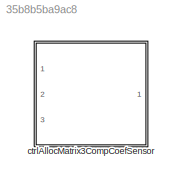
MODEL slx_35b8b5ba9ac8
KIND library
CONFIG AbsTol = auto
CONFIG EnableMultiTasking = off
CONFIG FixedStep = auto
CONFIG MaxStep = auto
CONFIG MinStep = auto
CONFIG RelTol = 1e-3
CONFIG SampleTimeConstraint = Unconstrained
CONFIG SolverName = VariableStepAuto
CONFIG StartTime = 0.0
CONFIG StopTime = 10.0
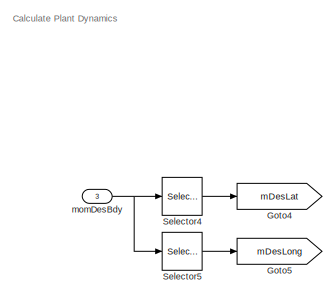
[diagram: ctrlAllocMatrix3CompCoefSensor - part 1/2, middle left region]
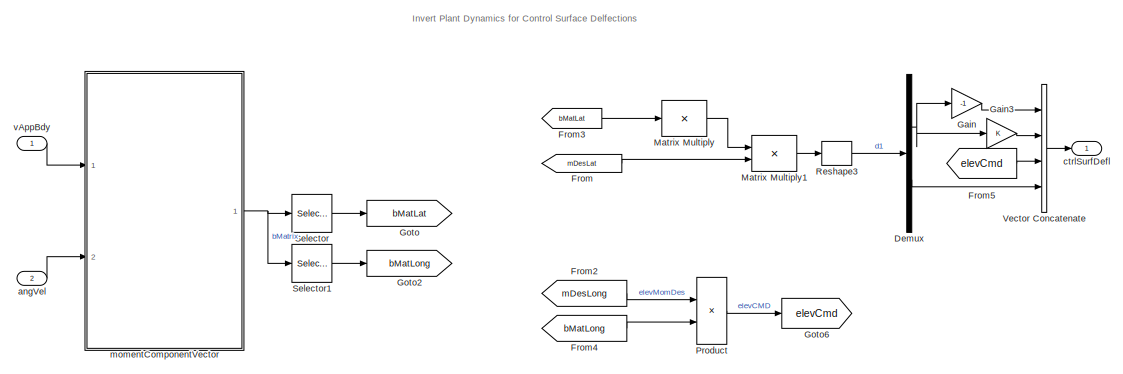
[diagram: ctrlAllocMatrix3CompCoefSensor - part 2/2, center side, full height]
BLOCK [SubSystem] ctrlAllocMatrix3CompCoefSensor
  MinAlgLoopOccurrences = on
  Ports = [3, 1]
  RequestExecContextInheritance = off
BLOCK [Demux] ctrlAllocMatrix3CompCoefSensor/Demux
  Outputs = 2
  Ports = [1, 2]
BLOCK [From] ctrlAllocMatrix3CompCoefSensor/From
  GotoTag = mDesLat
BLOCK [From] ctrlAllocMatrix3CompCoefSensor/From2
  GotoTag = mDesLong
BLOCK [From] ctrlAllocMatrix3CompCoefSensor/From3
  GotoTag = bMatLat
BLOCK [From] ctrlAllocMatrix3CompCoefSensor/From4
  GotoTag = bMatLong
BLOCK [From] ctrlAllocMatrix3CompCoefSensor/From5
  GotoTag = elevCmd
BLOCK [Gain] ctrlAllocMatrix3CompCoefSensor/Gain
  Gain = -1
BLOCK [Gain] ctrlAllocMatrix3CompCoefSensor/Gain3
BLOCK [Goto] ctrlAllocMatrix3CompCoefSensor/Goto
  GotoTag = bMatLat
BLOCK [Goto] ctrlAllocMatrix3CompCoefSensor/Goto2
  GotoTag = bMatLong
BLOCK [Goto] ctrlAllocMatrix3CompCoefSensor/Goto4
  GotoTag = mDesLat
BLOCK [Goto] ctrlAllocMatrix3CompCoefSensor/Goto5
  GotoTag = mDesLong
BLOCK [Goto] ctrlAllocMatrix3CompCoefSensor/Goto6
  GotoTag = elevCmd
BLOCK [Product] ctrlAllocMatrix3CompCoefSensor/Matrix Multiply
  Inputs = /
  Multiplication = Matrix(*)
  Ports = [1, 1]
BLOCK [Product] ctrlAllocMatrix3CompCoefSensor/Matrix Multiply1
  Multiplication = Matrix(*)
  Ports = [2, 1]
BLOCK [Product] ctrlAllocMatrix3CompCoefSensor/Product
  Inputs = */
  Ports = [2, 1]
BLOCK [Reshape] ctrlAllocMatrix3CompCoefSensor/Reshape3
  Ports = [1, 1]
BLOCK [Selector] ctrlAllocMatrix3CompCoefSensor/Selector
  IndexOptions = Index vector (dialog),Index vector (dialog)
  Indices = [1 3],[1 3]
  InputPortWidth = 3
  NumberOfDimensions = 2
  OutputSizes = 1,1
  Ports = [1, 1]
BLOCK [Selector] ctrlAllocMatrix3CompCoefSensor/Selector1
  IndexOptions = Index vector (dialog),Index vector (dialog)
  Indices = 2,2
  InputPortWidth = 3
  NumberOfDimensions = 2
  OutputSizes = 1,1
  Ports = [1, 1]
BLOCK [Selector] ctrlAllocMatrix3CompCoefSensor/Selector4
  IndexOptions = Index vector (dialog)
  Indices = [1 3]
  InputPortWidth = 3
  OutputSizes = 1
  Ports = [1, 1]
BLOCK [Selector] ctrlAllocMatrix3CompCoefSensor/Selector5
  IndexOptions = Index vector (dialog)
  Indices = 2
  InputPortWidth = 3
  OutputSizes = 1
  Ports = [1, 1]
BLOCK [Concatenate] ctrlAllocMatrix3CompCoefSensor/Vector Concatenate
  NumInputs = 4
  Ports = [4, 1]
BLOCK [Inport] ctrlAllocMatrix3CompCoefSensor/angVel
  Port = 2
BLOCK [Outport] ctrlAllocMatrix3CompCoefSensor/ctrlSurfDefl
  VectorParamsAs1DForOutWhenUnconnected = off
BLOCK [Inport] ctrlAllocMatrix3CompCoefSensor/momDesBdy
  Port = 3
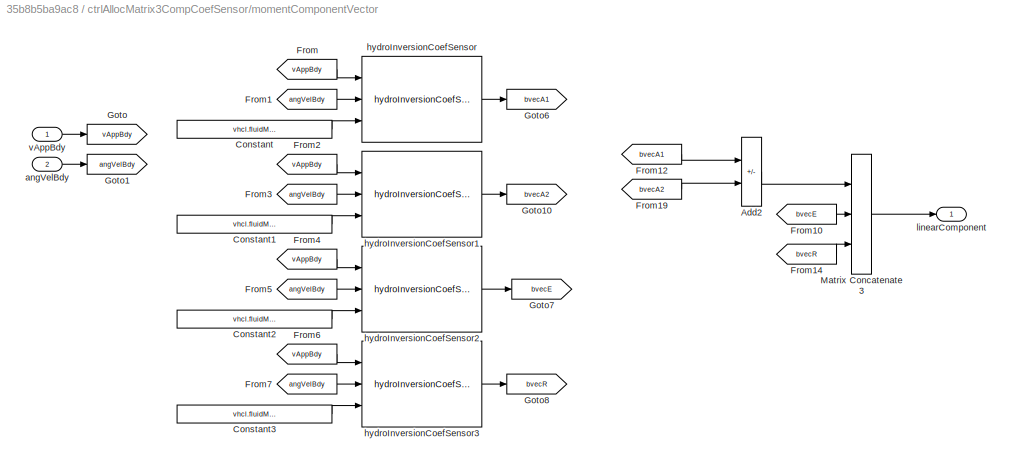
BLOCK [SubSystem] ctrlAllocMatrix3CompCoefSensor/momentComponentVector
  Ports = [2, 1]
  RequestExecContextInheritance = off
BLOCK [Sum] ctrlAllocMatrix3CompCoefSensor/momentComponentVector/Add2
  IconShape = rectangular
  Inputs = -+
  Ports = [2, 1]
BLOCK [Constant] ctrlAllocMatrix3CompCoefSensor/momentComponentVector/Constant
  Value = vhcl.fluidMomentArms.Value(:,1)
BLOCK [Constant] ctrlAllocMatrix3CompCoefSensor/momentComponentVector/Constant1
  Value = vhcl.fluidMomentArms.Value(:,2)
BLOCK [Constant] ctrlAllocMatrix3CompCoefSensor/momentComponentVector/Constant2
  Value = vhcl.fluidMomentArms.Value(:,3)
BLOCK [Constant] ctrlAllocMatrix3CompCoefSensor/momentComponentVector/Constant3
  Value = vhcl.fluidMomentArms.Value(:,4)
BLOCK [From] ctrlAllocMatrix3CompCoefSensor/momentComponentVector/From
  GotoTag = vAppBdy
BLOCK [From] ctrlAllocMatrix3CompCoefSensor/momentComponentVector/From1
  GotoTag = angVelBdy
BLOCK [From] ctrlAllocMatrix3CompCoefSensor/momentComponentVector/From10
  GotoTag = bvecE
BLOCK [From] ctrlAllocMatrix3CompCoefSensor/momentComponentVector/From12
  GotoTag = bvecA1
BLOCK [From] ctrlAllocMatrix3CompCoefSensor/momentComponentVector/From14
  GotoTag = bvecR
BLOCK [From] ctrlAllocMatrix3CompCoefSensor/momentComponentVector/From19
  GotoTag = bvecA2
BLOCK [From] ctrlAllocMatrix3CompCoefSensor/momentComponentVector/From2
  GotoTag = vAppBdy
BLOCK [From] ctrlAllocMatrix3CompCoefSensor/momentComponentVector/From3
  GotoTag = angVelBdy
BLOCK [From] ctrlAllocMatrix3CompCoefSensor/momentComponentVector/From4
  GotoTag = vAppBdy
BLOCK [From] ctrlAllocMatrix3CompCoefSensor/momentComponentVector/From5
  GotoTag = angVelBdy
BLOCK [From] ctrlAllocMatrix3CompCoefSensor/momentComponentVector/From6
  GotoTag = vAppBdy
BLOCK [From] ctrlAllocMatrix3CompCoefSensor/momentComponentVector/From7
  GotoTag = angVelBdy
BLOCK [Goto] ctrlAllocMatrix3CompCoefSensor/momentComponentVector/Goto
  GotoTag = vAppBdy
BLOCK [Goto] ctrlAllocMatrix3CompCoefSensor/momentComponentVector/Goto1
  GotoTag = angVelBdy
BLOCK [Goto] ctrlAllocMatrix3CompCoefSensor/momentComponentVector/Goto10
  GotoTag = bvecA2
BLOCK [Goto] ctrlAllocMatrix3CompCoefSensor/momentComponentVector/Goto6
  GotoTag = bvecA1
BLOCK [Goto] ctrlAllocMatrix3CompCoefSensor/momentComponentVector/Goto7
  GotoTag = bvecE
BLOCK [Goto] ctrlAllocMatrix3CompCoefSensor/momentComponentVector/Goto8
  GotoTag = bvecR
BLOCK [Concatenate] ctrlAllocMatrix3CompCoefSensor/momentComponentVector/Matrix Concatenate3
  ConcatenateDimension = 2
  Mode = Multidimensional array
  NumInputs = 3
  Ports = [3, 1]
BLOCK [Inport] ctrlAllocMatrix3CompCoefSensor/momentComponentVector/angVelBdy
  Port = 2
BLOCK [Reference] ctrlAllocMatrix3CompCoefSensor/momentComponentVector/hydroInversionCoefSensor  REF=hydroInversionCoefSensor_cl/hydroInversionCoefSensor
  Ports = [3, 1]
  SourceBlock = hydroInversionCoefSensor_cl/hydroInversionCoefSensor
BLOCK [Reference] ctrlAllocMatrix3CompCoefSensor/momentComponentVector/hydroInversionCoefSensor1  REF=hydroInversionCoefSensor_cl/hydroInversionCoefSensor
  Ports = [3, 1]
  SourceBlock = hydroInversionCoefSensor_cl/hydroInversionCoefSensor
BLOCK [Reference] ctrlAllocMatrix3CompCoefSensor/momentComponentVector/hydroInversionCoefSensor2  REF=hydroInversionCoefSensor_cl/hydroInversionCoefSensor
  Ports = [3, 1]
  SourceBlock = hydroInversionCoefSensor_cl/hydroInversionCoefSensor
BLOCK [Reference] ctrlAllocMatrix3CompCoefSensor/momentComponentVector/hydroInversionCoefSensor3  REF=hydroInversionCoefSensor_cl/hydroInversionCoefSensor
  Ports = [3, 1]
  SourceBlock = hydroInversionCoefSensor_cl/hydroInversionCoefSensor
BLOCK [Outport] ctrlAllocMatrix3CompCoefSensor/momentComponentVector/linearComponent
BLOCK [Inport] ctrlAllocMatrix3CompCoefSensor/momentComponentVector/vAppBdy
BLOCK [Inport] ctrlAllocMatrix3CompCoefSensor/vAppBdy
ANNOTATION ctrlAllocMatrix3CompCoefSensor: Calculate Plant Dynamics
ANNOTATION ctrlAllocMatrix3CompCoefSensor: Invert Plant Dynamics for Control Surface Delfections
NET ctrlAllocMatrix3CompCoefSensor/Demux:1 -> ctrlAllocMatrix3CompCoefSensor/Gain3:1, ctrlAllocMatrix3CompCoefSensor/Gain:1
LINE ctrlAllocMatrix3CompCoefSensor/Demux:2 -> ctrlAllocMatrix3CompCoefSensor/Vector Concatenate:4
LINE ctrlAllocMatrix3CompCoefSensor/From2:1 -> ctrlAllocMatrix3CompCoefSensor/Product:1
LINE ctrlAllocMatrix3CompCoefSensor/From3:1 -> ctrlAllocMatrix3CompCoefSensor/Matrix Multiply:1
LINE ctrlAllocMatrix3CompCoefSensor/From4:1 -> ctrlAllocMatrix3CompCoefSensor/Product:2
LINE ctrlAllocMatrix3CompCoefSensor/From5:1 -> ctrlAllocMatrix3CompCoefSensor/Vector Concatenate:3
LINE ctrlAllocMatrix3CompCoefSensor/From:1 -> ctrlAllocMatrix3CompCoefSensor/Matrix Multiply1:2
LINE ctrlAllocMatrix3CompCoefSensor/Gain3:1 -> ctrlAllocMatrix3CompCoefSensor/Vector Concatenate:2
LINE ctrlAllocMatrix3CompCoefSensor/Gain:1 -> ctrlAllocMatrix3CompCoefSensor/Vector Concatenate:1
LINE ctrlAllocMatrix3CompCoefSensor/Matrix Multiply1:1 -> ctrlAllocMatrix3CompCoefSensor/Reshape3:1
LINE ctrlAllocMatrix3CompCoefSensor/Matrix Multiply:1 -> ctrlAllocMatrix3CompCoefSensor/Matrix Multiply1:1
LINE ctrlAllocMatrix3CompCoefSensor/Product:1 -> ctrlAllocMatrix3CompCoefSensor/Goto6:1
LINE ctrlAllocMatrix3CompCoefSensor/Reshape3:1 -> ctrlAllocMatrix3CompCoefSensor/Demux:1
LINE ctrlAllocMatrix3CompCoefSensor/Selector1:1 -> ctrlAllocMatrix3CompCoefSensor/Goto2:1
LINE ctrlAllocMatrix3CompCoefSensor/Selector4:1 -> ctrlAllocMatrix3CompCoefSensor/Goto4:1
LINE ctrlAllocMatrix3CompCoefSensor/Selector5:1 -> ctrlAllocMatrix3CompCoefSensor/Goto5:1
LINE ctrlAllocMatrix3CompCoefSensor/Selector:1 -> ctrlAllocMatrix3CompCoefSensor/Goto:1
LINE ctrlAllocMatrix3CompCoefSensor/Vector Concatenate:1 -> ctrlAllocMatrix3CompCoefSensor/ctrlSurfDefl:1
LINE ctrlAllocMatrix3CompCoefSensor/angVel:1 -> ctrlAllocMatrix3CompCoefSensor/momentComponentVector:2
NET ctrlAllocMatrix3CompCoefSensor/momDesBdy:1 -> ctrlAllocMatrix3CompCoefSensor/Selector4:1, ctrlAllocMatrix3CompCoefSensor/Selector5:1
LINE ctrlAllocMatrix3CompCoefSensor/momentComponentVector/Add2:1 -> ctrlAllocMatrix3CompCoefSensor/momentComponentVector/Matrix Concatenate3:1
LINE ctrlAllocMatrix3CompCoefSensor/momentComponentVector/Constant1:1 -> ctrlAllocMatrix3CompCoefSensor/momentComponentVector/hydroInversionCoefSensor1:3
LINE ctrlAllocMatrix3CompCoefSensor/momentComponentVector/Constant2:1 -> ctrlAllocMatrix3CompCoefSensor/momentComponentVector/hydroInversionCoefSensor2:3
LINE ctrlAllocMatrix3CompCoefSensor/momentComponentVector/Constant3:1 -> ctrlAllocMatrix3CompCoefSensor/momentComponentVector/hydroInversionCoefSensor3:3
LINE ctrlAllocMatrix3CompCoefSensor/momentComponentVector/Constant:1 -> ctrlAllocMatrix3CompCoefSensor/momentComponentVector/hydroInversionCoefSensor:3
LINE ctrlAllocMatrix3CompCoefSensor/momentComponentVector/From10:1 -> ctrlAllocMatrix3CompCoefSensor/momentComponentVector/Matrix Concatenate3:2
LINE ctrlAllocMatrix3CompCoefSensor/momentComponentVector/From12:1 -> ctrlAllocMatrix3CompCoefSensor/momentComponentVector/Add2:1
LINE ctrlAllocMatrix3CompCoefSensor/momentComponentVector/From14:1 -> ctrlAllocMatrix3CompCoefSensor/momentComponentVector/Matrix Concatenate3:3
LINE ctrlAllocMatrix3CompCoefSensor/momentComponentVector/From19:1 -> ctrlAllocMatrix3CompCoefSensor/momentComponentVector/Add2:2
LINE ctrlAllocMatrix3CompCoefSensor/momentComponentVector/From1:1 -> ctrlAllocMatrix3CompCoefSensor/momentComponentVector/hydroInversionCoefSensor:2
LINE ctrlAllocMatrix3CompCoefSensor/momentComponentVector/From2:1 -> ctrlAllocMatrix3CompCoefSensor/momentComponentVector/hydroInversionCoefSensor1:1
LINE ctrlAllocMatrix3CompCoefSensor/momentComponentVector/From3:1 -> ctrlAllocMatrix3CompCoefSensor/momentComponentVector/hydroInversionCoefSensor1:2
LINE ctrlAllocMatrix3CompCoefSensor/momentComponentVector/From4:1 -> ctrlAllocMatrix3CompCoefSensor/momentComponentVector/hydroInversionCoefSensor2:1
LINE ctrlAllocMatrix3CompCoefSensor/momentComponentVector/From5:1 -> ctrlAllocMatrix3CompCoefSensor/momentComponentVector/hydroInversionCoefSensor2:2
LINE ctrlAllocMatrix3CompCoefSensor/momentComponentVector/From6:1 -> ctrlAllocMatrix3CompCoefSensor/momentComponentVector/hydroInversionCoefSensor3:1
LINE ctrlAllocMatrix3CompCoefSensor/momentComponentVector/From7:1 -> ctrlAllocMatrix3CompCoefSensor/momentComponentVector/hydroInversionCoefSensor3:2
LINE ctrlAllocMatrix3CompCoefSensor/momentComponentVector/From:1 -> ctrlAllocMatrix3CompCoefSensor/momentComponentVector/hydroInversionCoefSensor:1
LINE ctrlAllocMatrix3CompCoefSensor/momentComponentVector/Matrix Concatenate3:1 -> ctrlAllocMatrix3CompCoefSensor/momentComponentVector/linearComponent:1
LINE ctrlAllocMatrix3CompCoefSensor/momentComponentVector/angVelBdy:1 -> ctrlAllocMatrix3CompCoefSensor/momentComponentVector/Goto1:1
LINE ctrlAllocMatrix3CompCoefSensor/momentComponentVector/hydroInversionCoefSensor1:1 -> ctrlAllocMatrix3CompCoefSensor/momentComponentVector/Goto10:1
LINE ctrlAllocMatrix3CompCoefSensor/momentComponentVector/hydroInversionCoefSensor2:1 -> ctrlAllocMatrix3CompCoefSensor/momentComponentVector/Goto7:1
LINE ctrlAllocMatrix3CompCoefSensor/momentComponentVector/hydroInversionCoefSensor3:1 -> ctrlAllocMatrix3CompCoefSensor/momentComponentVector/Goto8:1
LINE ctrlAllocMatrix3CompCoefSensor/momentComponentVector/hydroInversionCoefSensor:1 -> ctrlAllocMatrix3CompCoefSensor/momentComponentVector/Goto6:1
LINE ctrlAllocMatrix3CompCoefSensor/momentComponentVector/vAppBdy:1 -> ctrlAllocMatrix3CompCoefSensor/momentComponentVector/Goto:1
NET ctrlAllocMatrix3CompCoefSensor/momentComponentVector:1 -> ctrlAllocMatrix3CompCoefSensor/Selector1:1, ctrlAllocMatrix3CompCoefSensor/Selector:1
LINE ctrlAllocMatrix3CompCoefSensor/vAppBdy:1 -> ctrlAllocMatrix3CompCoefSensor/momentComponentVector:1
note: NET lines group one-source signal fan-out (src -> all destinations, sorted); 1:1 wires keep LINE
